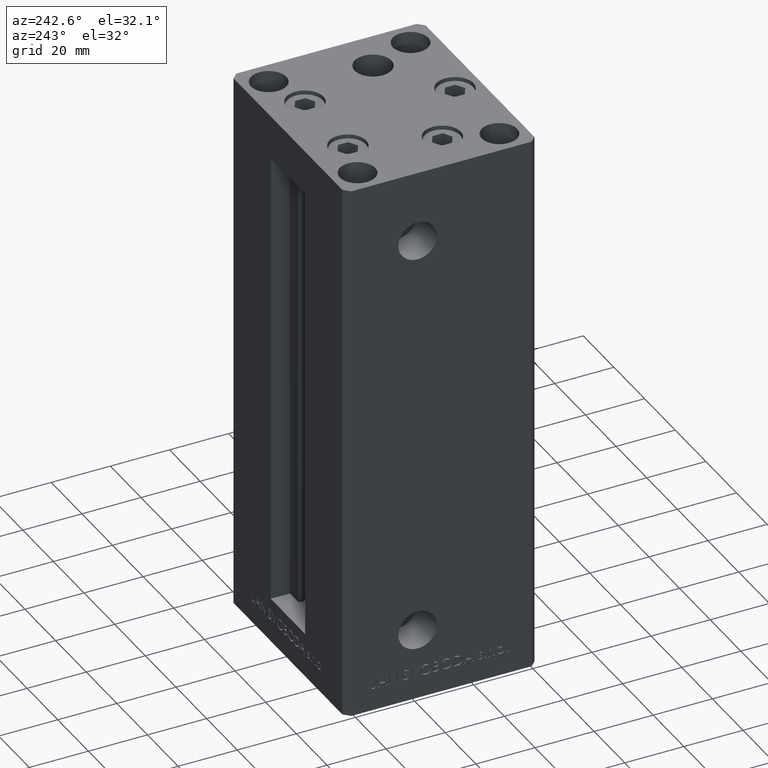
[diagram: clean part render]
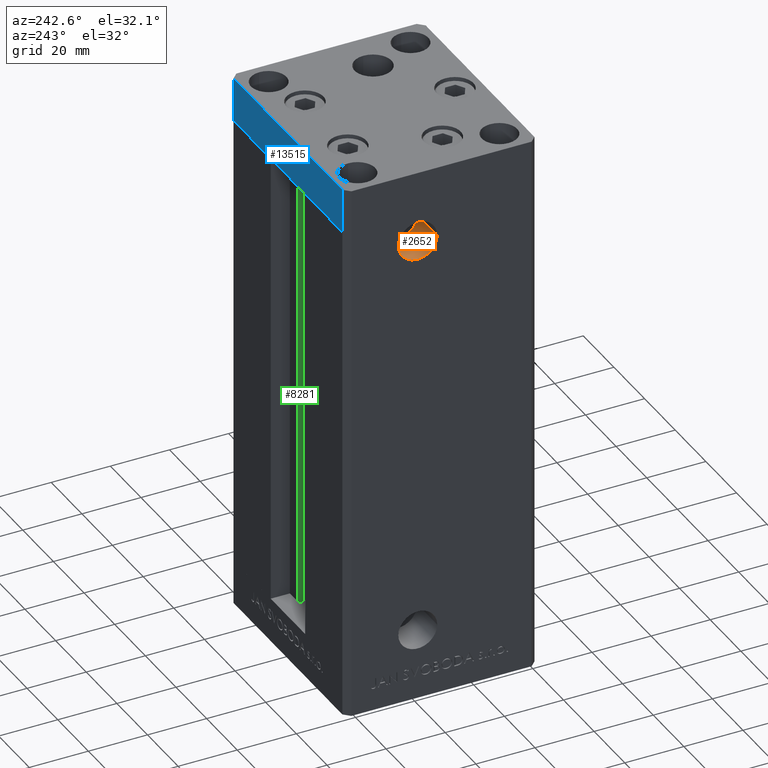
[diagram: same view with three faces highlighted in distinct colors, each labeled with its STEP entity id]
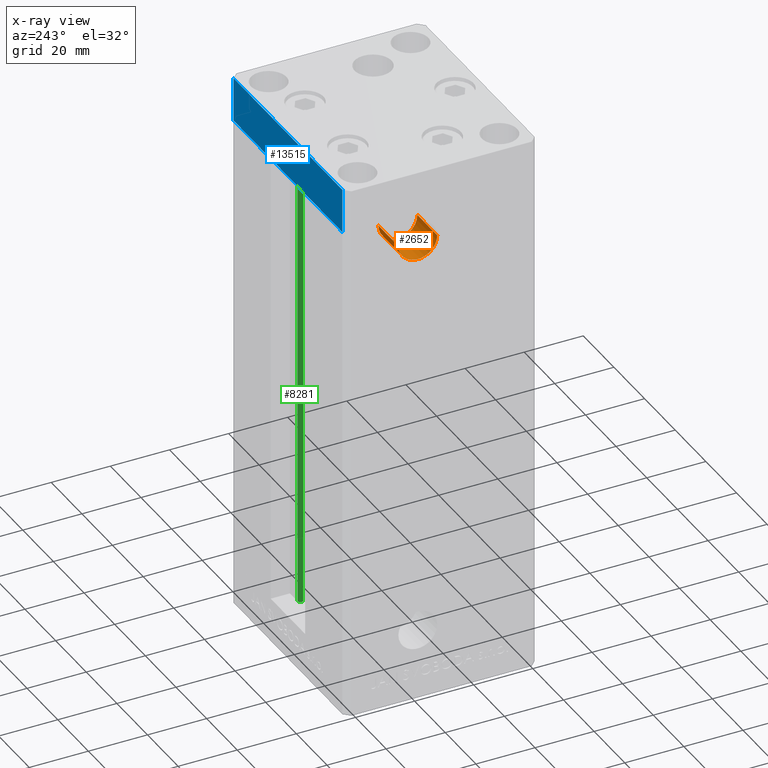
[diagram: x-ray of the same camera — body ghosted, the three highlighted faces saturated]
A machine part, auxiliary view with three faces highlighted in distinct colors.
The next image is the same camera in x-ray (body ghosted, the three faces saturated) — at least one of them is partly hidden behind the body in this view.
Their STEP definitions:

[orange] entity #2652 — the highlighted cylindrical surface (edge-blend (fillet) strip) has radius 6.58 mm, axis along (-1, -0, -0).
#718 = AXIS2_PLACEMENT_3D ( 'NONE', #4823, #7857, #42520 ) ;
#1351 = CARTESIAN_POINT ( 'NONE',  ( -24.50000000000000000, 7.999999999999994671, 147.0000000000000000 ) ) ;
#2652 = ADVANCED_FACE ( 'NONE', ( #46493 ), #24360, .F. ) ;
#4823 = CARTESIAN_POINT ( 'NONE',  ( -37.50000000000000000, 7.999999999999991118, 147.0000000000000000 ) ) ;
#7857 = DIRECTION ( 'NONE',  ( -1.000000000000000000, -2.275047181608927644E-16, 0.000000000000000000 ) ) ;
#8157 = DIRECTION ( 'NONE',  ( -1.000000000000000000, -2.275047181608927644E-16, 0.000000000000000000 ) ) ;
#9498 = VECTOR ( 'NONE', #13095, 1000.000000000000000 ) ;
#10819 = ORIENTED_EDGE ( 'NONE', *, *, #18658, .T. ) ;
#12580 = CARTESIAN_POINT ( 'NONE',  ( -24.50000000000000000, 7.999999999999994671, 147.0000000000000000 ) ) ;
#12796 = CARTESIAN_POINT ( 'NONE',  ( -37.50000000000000000, 14.58000000000000718, 147.0000000000000000 ) ) ;
#13095 = DIRECTION ( 'NONE',  ( -1.000000000000000000, -2.275047181608927644E-16, -0.000000000000000000 ) ) ;
#13566 = CARTESIAN_POINT ( 'NONE',  ( -24.50000000000000000, 1.419999999999979501, 147.0000000000000000 ) ) ;
#16637 = VECTOR ( 'NONE', #49401, 1000.000000000000000 ) ;
#16867 = LINE ( 'NONE', #35678, #9498 ) ;
#17276 = VERTEX_POINT ( 'NONE', #27818 ) ;
#18658 = EDGE_CURVE ( 'NONE', #17276, #46800, #18998, .T. ) ;
#18998 = LINE ( 'NONE', #34784, #16637 ) ;
#19443 = VERTEX_POINT ( 'NONE', #13566 ) ;
#19865 = DIRECTION ( 'NONE',  ( 0.000000000000000000, -1.000000000000000000, 0.000000000000000000 ) ) ;
#20360 = EDGE_CURVE ( 'NONE', #19443, #24185, #16867, .T. ) ;
#21196 = EDGE_CURVE ( 'NONE', #46800, #24185, #40003, .T. ) ;
#23270 = ORIENTED_EDGE ( 'NONE', *, *, #21196, .T. ) ;
#24185 = VERTEX_POINT ( 'NONE', #25416 ) ;
#24360 = CYLINDRICAL_SURFACE ( 'NONE', #44468, 6.580000000000015170 ) ;
#25416 = CARTESIAN_POINT ( 'NONE',  ( -37.50000000000000000, 1.419999999999975948, 147.0000000000000000 ) ) ;
#27818 = CARTESIAN_POINT ( 'NONE',  ( -24.50000000000000000, 14.58000000000000895, 147.0000000000000000 ) ) ;
#28127 = DIRECTION ( 'NONE',  ( -1.000000000000000000, -2.275047181608927644E-16, -0.000000000000000000 ) ) ;
#30876 = ORIENTED_EDGE ( 'NONE', *, *, #20360, .F. ) ;
#31486 = DIRECTION ( 'NONE',  ( 0.000000000000000000, -1.000000000000000000, 0.000000000000000000 ) ) ;
#34784 = CARTESIAN_POINT ( 'NONE',  ( -24.50000000000000000, 14.58000000000000895, 147.0000000000000000 ) ) ;
#35678 = CARTESIAN_POINT ( 'NONE',  ( -24.50000000000000000, 1.419999999999979501, 147.0000000000000000 ) ) ;
#36412 = ORIENTED_EDGE ( 'NONE', *, *, #37419, .F. ) ;
#37419 = EDGE_CURVE ( 'NONE', #17276, #19443, #43904, .T. ) ;
#40003 = CIRCLE ( 'NONE', #718, 6.580000000000015170 ) ;
#40019 = EDGE_LOOP ( 'NONE', ( #36412, #10819, #23270, #30876 ) ) ;
#42520 = DIRECTION ( 'NONE',  ( 0.000000000000000000, -1.000000000000000000, 0.000000000000000000 ) ) ;
#43904 = CIRCLE ( 'NONE', #46311, 6.580000000000015170 ) ;
#44468 = AXIS2_PLACEMENT_3D ( 'NONE', #12580, #28127, #19865 ) ;
#46311 = AXIS2_PLACEMENT_3D ( 'NONE', #1351, #8157, #31486 ) ;
#46493 = FACE_OUTER_BOUND ( 'NONE', #40019, .T. ) ;
#46800 = VERTEX_POINT ( 'NONE', #12796 ) ;
#49401 = DIRECTION ( 'NONE',  ( -1.000000000000000000, -2.275047181608927644E-16, -0.000000000000000000 ) ) ;

[blue] entity #13515 — the highlighted planar face has unit normal (-0, 1, 0).
#310 = DIRECTION ( 'NONE',  ( 0.000000000000000000, 0.000000000000000000, 1.000000000000000000 ) ) ;
#1485 = EDGE_CURVE ( 'NONE', #47437, #10066, #23668, .T. ) ;
#6019 = EDGE_CURVE ( 'NONE', #22724, #30137, #9191, .T. ) ;
#6708 = ORIENTED_EDGE ( 'NONE', *, *, #49300, .F. ) ;
#9191 = LINE ( 'NONE', #47608, #26788 ) ;
#10066 = VERTEX_POINT ( 'NONE', #37330 ) ;
#12847 = VECTOR ( 'NONE', #310, 1000.000000000000000 ) ;
#13515 = ADVANCED_FACE ( 'NONE', ( #47227 ), #27872, .T. ) ;
#16579 = EDGE_CURVE ( 'NONE', #10066, #30137, #40560, .T. ) ;
#17073 = CARTESIAN_POINT ( 'NONE',  ( 35.49999999999992184, 32.50000000000000711, 0.000000000000000000 ) ) ;
#19400 = CARTESIAN_POINT ( 'NONE',  ( 35.49999999999992184, 32.50000000000000711, -15.00000000000000000 ) ) ;
#19863 = CARTESIAN_POINT ( 'NONE',  ( 35.49999999999992184, 32.50000000000000711, -15.00000000000000000 ) ) ;
#20608 = VECTOR ( 'NONE', #36778, 1000.000000000000000 ) ;
#20723 = CARTESIAN_POINT ( 'NONE',  ( -35.50000000000002842, 32.49999999999999289, -15.00000000000000000 ) ) ;
#22724 = VERTEX_POINT ( 'NONE', #17073 ) ;
#23668 = LINE ( 'NONE', #39252, #48572 ) ;
#23719 = AXIS2_PLACEMENT_3D ( 'NONE', #19863, #34682, #35169 ) ;
#26653 = CARTESIAN_POINT ( 'NONE',  ( -35.50000000000002842, 32.49999999999999289, 0.000000000000000000 ) ) ;
#26788 = VECTOR ( 'NONE', #39091, 1000.000000000000000 ) ;
#27872 = PLANE ( 'NONE',  #23719 ) ;
#30137 = VERTEX_POINT ( 'NONE', #26653 ) ;
#30336 = EDGE_LOOP ( 'NONE', ( #38293, #6708, #47607, #47432 ) ) ;
#30936 = LINE ( 'NONE', #19400, #12847 ) ;
#31437 = CARTESIAN_POINT ( 'NONE',  ( 35.49999999999992184, 32.50000000000000711, -15.00000000000000000 ) ) ;
#34682 = DIRECTION ( 'NONE',  ( -1.954618001100629052E-16, 1.000000000000000000, 0.000000000000000000 ) ) ;
#35169 = DIRECTION ( 'NONE',  ( -1.000000000000000000, -1.954618001100629052E-16, 0.000000000000000000 ) ) ;
#35957 = DIRECTION ( 'NONE',  ( -1.000000000000000000, -1.954618001100629052E-16, 0.000000000000000000 ) ) ;
#36778 = DIRECTION ( 'NONE',  ( 0.000000000000000000, 0.000000000000000000, 1.000000000000000000 ) ) ;
#37330 = CARTESIAN_POINT ( 'NONE',  ( -35.50000000000002842, 32.49999999999999289, -15.00000000000000000 ) ) ;
#38293 = ORIENTED_EDGE ( 'NONE', *, *, #6019, .F. ) ;
#39091 = DIRECTION ( 'NONE',  ( -1.000000000000000000, -1.954618001100629052E-16, 0.000000000000000000 ) ) ;
#39252 = CARTESIAN_POINT ( 'NONE',  ( 35.49999999999992184, 32.50000000000000711, -15.00000000000000000 ) ) ;
#40560 = LINE ( 'NONE', #20723, #20608 ) ;
#47227 = FACE_OUTER_BOUND ( 'NONE', #30336, .T. ) ;
#47432 = ORIENTED_EDGE ( 'NONE', *, *, #16579, .T. ) ;
#47437 = VERTEX_POINT ( 'NONE', #31437 ) ;
#47607 = ORIENTED_EDGE ( 'NONE', *, *, #1485, .T. ) ;
#47608 = CARTESIAN_POINT ( 'NONE',  ( 35.49999999999992184, 32.50000000000000711, 0.000000000000000000 ) ) ;
#48572 = VECTOR ( 'NONE', #35957, 1000.000000000000000 ) ;
#49300 = EDGE_CURVE ( 'NONE', #47437, #22724, #30936, .T. ) ;

[green] entity #8281 — the highlighted cylindrical surface (edge-blend (fillet) strip) has radius 0.9333 mm, axis along (0, 0, 1).
#504 = EDGE_CURVE ( 'NONE', #1543, #15445, #34176, .T. ) ;
#595 = ORIENTED_EDGE ( 'NONE', *, *, #504, .T. ) ;
#901 = DIRECTION ( 'NONE',  ( 0.000000000000000000, 0.000000000000000000, -1.000000000000000000 ) ) ;
#1543 = VERTEX_POINT ( 'NONE', #44499 ) ;
#1995 = DIRECTION ( 'NONE',  ( -0.000000000000000000, -0.000000000000000000, 1.000000000000000000 ) ) ;
#2108 = CYLINDRICAL_SURFACE ( 'NONE', #32465, 0.9333333333340008142 ) ;
#3528 = VERTEX_POINT ( 'NONE', #21916 ) ;
#8281 = ADVANCED_FACE ( 'NONE', ( #10155 ), #2108, .T. ) ;
#9835 = DIRECTION ( 'NONE',  ( 1.000000000000000000, 0.000000000000000000, 0.000000000000000000 ) ) ;
#9899 = DIRECTION ( 'NONE',  ( -0.000000000000000000, -0.000000000000000000, 1.000000000000000000 ) ) ;
#9905 = CARTESIAN_POINT ( 'NONE',  ( 5.375042956467948052, 24.59999999999899245, 156.0000000000000000 ) ) ;
#10155 = FACE_OUTER_BOUND ( 'NONE', #30065, .T. ) ;
#10843 = CARTESIAN_POINT ( 'NONE',  ( 5.375042956467947164, 24.59999999999899245, 0.000000000000000000 ) ) ;
#11376 = CIRCLE ( 'NONE', #28187, 0.9333333333340008142 ) ;
#12699 = CARTESIAN_POINT ( 'NONE',  ( 6.183333333334001480, 25.06666666666599141, 156.0000000000000000 ) ) ;
#13604 = CARTESIAN_POINT ( 'NONE',  ( 6.183333333334001480, 25.06666666666599141, 0.000000000000000000 ) ) ;
#13672 = DIRECTION ( 'NONE',  ( 1.000000000000000000, 0.000000000000000000, 0.000000000000000000 ) ) ;
#15252 = AXIS2_PLACEMENT_3D ( 'NONE', #13604, #28904, #9835 ) ;
#15445 = VERTEX_POINT ( 'NONE', #9905 ) ;
#16029 = CIRCLE ( 'NONE', #15252, 0.9333333333340008142 ) ;
#21194 = CARTESIAN_POINT ( 'NONE',  ( 6.183333333334001480, 25.06666666666599141, 0.000000000000000000 ) ) ;
#21916 = CARTESIAN_POINT ( 'NONE',  ( 6.183333333334001480, 25.99999999999999289, 0.000000000000000000 ) ) ;
#26120 = VECTOR ( 'NONE', #38206, 1000.000000000000000 ) ;
#26610 = EDGE_CURVE ( 'NONE', #1543, #3528, #16029, .T. ) ;
#27499 = DIRECTION ( 'NONE',  ( 1.000000000000000000, 0.000000000000000000, 0.000000000000000000 ) ) ;
#28187 = AXIS2_PLACEMENT_3D ( 'NONE', #12699, #901, #27499 ) ;
#28904 = DIRECTION ( 'NONE',  ( -0.000000000000000000, -0.000000000000000000, -1.000000000000000000 ) ) ;
#30065 = EDGE_LOOP ( 'NONE', ( #36605, #30071, #595, #37813 ) ) ;
#30071 = ORIENTED_EDGE ( 'NONE', *, *, #26610, .F. ) ;
#30887 = EDGE_CURVE ( 'NONE', #15445, #42330, #11376, .T. ) ;
#32465 = AXIS2_PLACEMENT_3D ( 'NONE', #21194, #9899, #13672 ) ;
#32478 = CARTESIAN_POINT ( 'NONE',  ( 6.183333333334001480, 25.99999999999999289, 156.0000000000000000 ) ) ;
#33578 = VECTOR ( 'NONE', #1995, 1000.000000000000000 ) ;
#34176 = LINE ( 'NONE', #10843, #26120 ) ;
#36150 = LINE ( 'NONE', #36901, #33578 ) ;
#36605 = ORIENTED_EDGE ( 'NONE', *, *, #40906, .F. ) ;
#36901 = CARTESIAN_POINT ( 'NONE',  ( 6.183333333334001480, 25.99999999999999289, 0.000000000000000000 ) ) ;
#37813 = ORIENTED_EDGE ( 'NONE', *, *, #30887, .T. ) ;
#38206 = DIRECTION ( 'NONE',  ( -0.000000000000000000, -0.000000000000000000, 1.000000000000000000 ) ) ;
#40906 = EDGE_CURVE ( 'NONE', #3528, #42330, #36150, .T. ) ;
#42330 = VERTEX_POINT ( 'NONE', #32478 ) ;
#44499 = CARTESIAN_POINT ( 'NONE',  ( 5.375042956467947164, 24.59999999999899245, 0.000000000000000000 ) ) ;